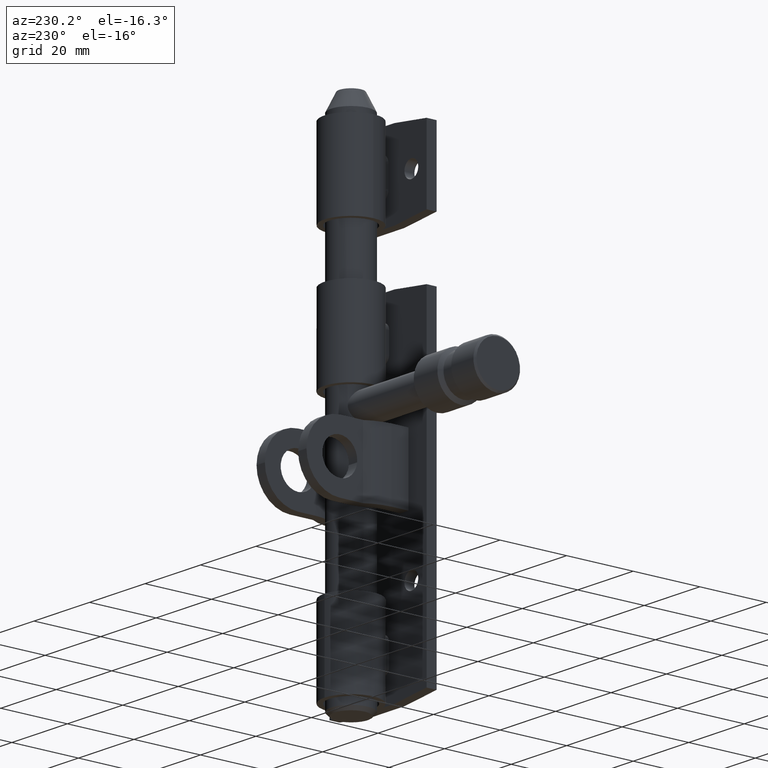
[diagram: clean part render]
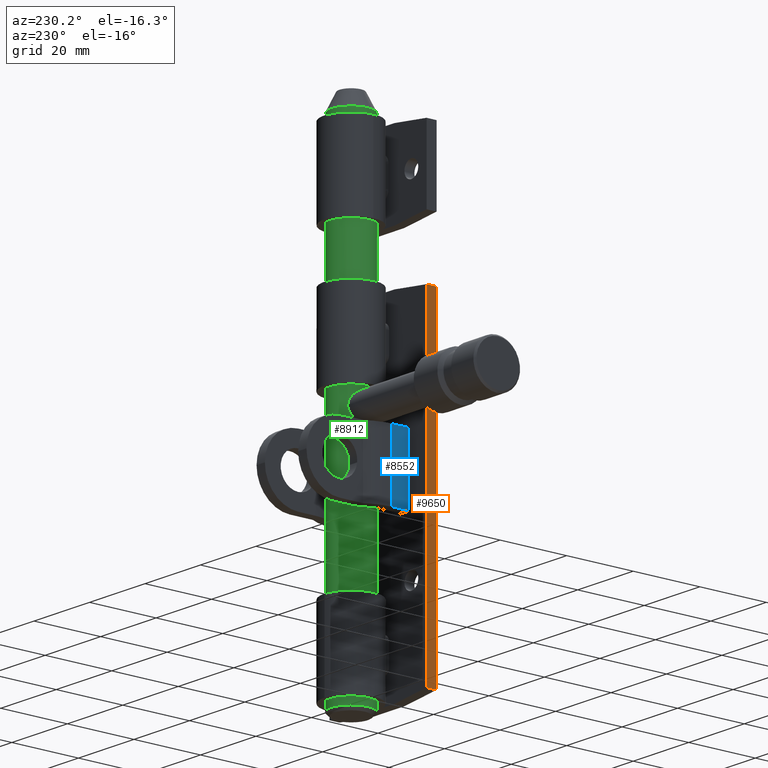
[diagram: same view with three faces highlighted in distinct colors, each labeled with its STEP entity id]
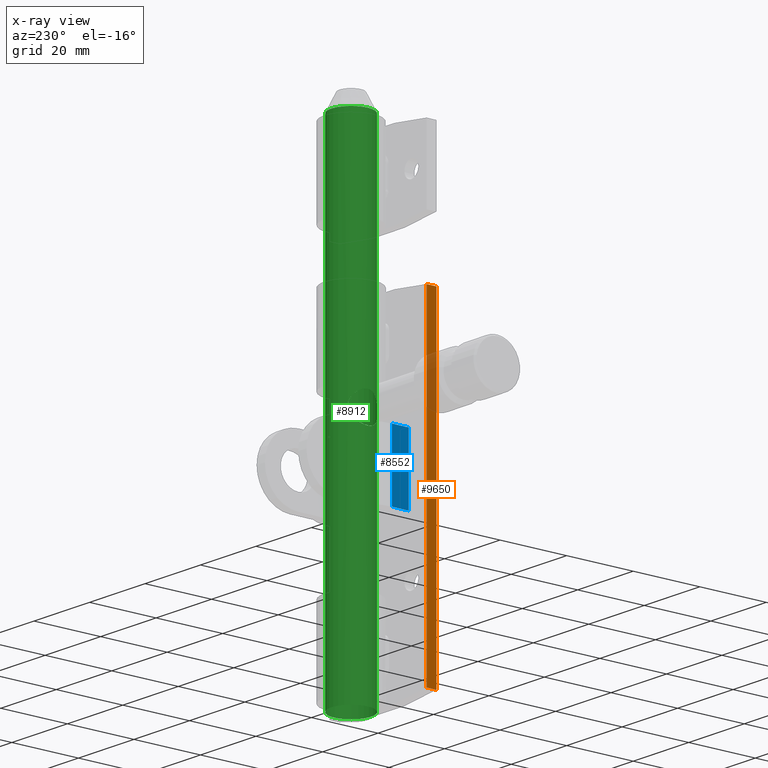
[diagram: x-ray of the same camera — body ghosted, the three highlighted faces saturated]
A machine part, auxiliary view with three faces highlighted in distinct colors.
The next image is the same camera in x-ray (body ghosted, the three faces saturated) — at least one of them is partly hidden behind the body in this view.
Their STEP definitions:

[orange] entity #9650 — the highlighted planar face has unit normal (-1, 0, 0).
#279 = CARTESIAN_POINT ( 'NONE',  ( -17.50000000000002132, 0.000000000000000000, -48.50000000000000000 ) ) ;
#425 = VECTOR ( 'NONE', #5684, 1000.000000000000000 ) ;
#1229 = EDGE_LOOP ( 'NONE', ( #2796, #5335, #4803, #6388 ) ) ;
#1445 = VECTOR ( 'NONE', #4489, 1000.000000000000000 ) ;
#1672 = CARTESIAN_POINT ( 'NONE',  ( -17.50000000000002132, -3.000000000000000000, -48.50000000000000000 ) ) ;
#1852 = DIRECTION ( 'NONE',  ( -1.000000000000000000, 0.000000000000000000, 0.000000000000000000 ) ) ;
#1913 = DIRECTION ( 'NONE',  ( 0.000000000000000000, 0.000000000000000000, 1.000000000000000000 ) ) ;
#2041 = EDGE_CURVE ( 'NONE', #8807, #13610, #7839, .T. ) ;
#2796 = ORIENTED_EDGE ( 'NONE', *, *, #8507, .F. ) ;
#3322 = VECTOR ( 'NONE', #11755, 1000.000000000000000 ) ;
#3829 = LINE ( 'NONE', #4001, #10210 ) ;
#4001 = CARTESIAN_POINT ( 'NONE',  ( -17.50000000000002132, -3.000000000000000000, -48.50000000000000000 ) ) ;
#4489 = DIRECTION ( 'NONE',  ( 0.000000000000000000, 0.000000000000000000, 1.000000000000000000 ) ) ;
#4663 = CARTESIAN_POINT ( 'NONE',  ( -17.50000000000002132, -3.000000000000000000, 48.50000000000000000 ) ) ;
#4803 = ORIENTED_EDGE ( 'NONE', *, *, #2041, .T. ) ;
#5041 = LINE ( 'NONE', #15260, #1445 ) ;
#5178 = DIRECTION ( 'NONE',  ( 0.000000000000000000, 1.000000000000000000, 0.000000000000000000 ) ) ;
#5335 = ORIENTED_EDGE ( 'NONE', *, *, #14419, .F. ) ;
#5492 = PLANE ( 'NONE',  #13529 ) ;
#5684 = DIRECTION ( 'NONE',  ( 0.000000000000000000, 1.000000000000000000, 0.000000000000000000 ) ) ;
#6388 = ORIENTED_EDGE ( 'NONE', *, *, #9695, .T. ) ;
#7839 = LINE ( 'NONE', #15402, #3322 ) ;
#8507 = EDGE_CURVE ( 'NONE', #14134, #14127, #5041, .T. ) ;
#8807 = VERTEX_POINT ( 'NONE', #1672 ) ;
#9447 = LINE ( 'NONE', #11602, #425 ) ;
#9632 = FACE_OUTER_BOUND ( 'NONE', #1229, .T. ) ;
#9650 = ADVANCED_FACE ( 'NONE', ( #9632 ), #5492, .T. ) ;
#9695 = EDGE_CURVE ( 'NONE', #13610, #14127, #9447, .T. ) ;
#10210 = VECTOR ( 'NONE', #5178, 1000.000000000000000 ) ;
#11095 = CARTESIAN_POINT ( 'NONE',  ( -17.50000000000002132, 0.000000000000000000, 48.50000000000000000 ) ) ;
#11602 = CARTESIAN_POINT ( 'NONE',  ( -17.50000000000002132, -3.000000000000000000, 48.50000000000000000 ) ) ;
#11755 = DIRECTION ( 'NONE',  ( 0.000000000000000000, 0.000000000000000000, 1.000000000000000000 ) ) ;
#13529 = AXIS2_PLACEMENT_3D ( 'NONE', #13956, #1852, #1913 ) ;
#13610 = VERTEX_POINT ( 'NONE', #4663 ) ;
#13956 = CARTESIAN_POINT ( 'NONE',  ( -17.50000000000002132, -3.000000000000000000, -48.50000000000000000 ) ) ;
#14127 = VERTEX_POINT ( 'NONE', #11095 ) ;
#14134 = VERTEX_POINT ( 'NONE', #279 ) ;
#14419 = EDGE_CURVE ( 'NONE', #8807, #14134, #3829, .T. ) ;
#15260 = CARTESIAN_POINT ( 'NONE',  ( -17.50000000000002132, 0.000000000000000000, -48.50000000000000000 ) ) ;
#15402 = CARTESIAN_POINT ( 'NONE',  ( -17.50000000000002132, -3.000000000000000000, -48.50000000000000000 ) ) ;

[blue] entity #8552 — the highlighted planar face has unit normal (1, 0, 0).
#622 = VERTEX_POINT ( 'NONE', #7778 ) ;
#823 = PLANE ( 'NONE',  #6864 ) ;
#1046 = ORIENTED_EDGE ( 'NONE', *, *, #5807, .F. ) ;
#1968 = DIRECTION ( 'NONE',  ( 0.000000000000000000, 1.000000000000000000, 0.000000000000000000 ) ) ;
#2220 = FACE_OUTER_BOUND ( 'NONE', #9530, .T. ) ;
#2780 = VERTEX_POINT ( 'NONE', #15377 ) ;
#3079 = DIRECTION ( 'NONE',  ( -0.000000000000000000, -1.387778780781445676E-16, 1.000000000000000000 ) ) ;
#3095 = ORIENTED_EDGE ( 'NONE', *, *, #10683, .T. ) ;
#3278 = CARTESIAN_POINT ( 'NONE',  ( -11.00000000000000000, 6.245004513516503568E-16, -4.499999999999999112 ) ) ;
#3560 = VECTOR ( 'NONE', #1968, 1000.000000000000000 ) ;
#4007 = CARTESIAN_POINT ( 'NONE',  ( -11.00000000000000000, -2.151057110211241192E-15, 15.50000000000000178 ) ) ;
#5807 = EDGE_CURVE ( 'NONE', #13171, #2780, #7329, .T. ) ;
#6670 = DIRECTION ( 'NONE',  ( -0.000000000000000000, -1.387778780781445676E-16, 1.000000000000000000 ) ) ;
#6772 = ORIENTED_EDGE ( 'NONE', *, *, #8416, .F. ) ;
#6864 = AXIS2_PLACEMENT_3D ( 'NONE', #3278, #11816, #8164 ) ;
#7329 = LINE ( 'NONE', #15170, #3560 ) ;
#7778 = CARTESIAN_POINT ( 'NONE',  ( -11.00000000000000000, 0.000000000000000000, 15.50000000000000000 ) ) ;
#8164 = DIRECTION ( 'NONE',  ( 0.000000000000000000, 0.000000000000000000, -1.000000000000000000 ) ) ;
#8416 = EDGE_CURVE ( 'NONE', #2780, #11432, #8837, .T. ) ;
#8513 = VECTOR ( 'NONE', #11223, 1000.000000000000000 ) ;
#8552 = ADVANCED_FACE ( 'NONE', ( #2220 ), #823, .F. ) ;
#8837 = LINE ( 'NONE', #8974, #9374 ) ;
#8974 = CARTESIAN_POINT ( 'NONE',  ( -11.00000000000000000, 5.000000000000000888, -4.499999999999999112 ) ) ;
#9374 = VECTOR ( 'NONE', #3079, 1000.000000000000000 ) ;
#9530 = EDGE_LOOP ( 'NONE', ( #13101, #6772, #1046, #3095 ) ) ;
#10683 = EDGE_CURVE ( 'NONE', #13171, #622, #12002, .T. ) ;
#11223 = DIRECTION ( 'NONE',  ( 0.000000000000000000, 1.000000000000000000, 0.000000000000000000 ) ) ;
#11432 = VERTEX_POINT ( 'NONE', #12971 ) ;
#11816 = DIRECTION ( 'NONE',  ( 1.000000000000000000, -0.000000000000000000, 0.000000000000000000 ) ) ;
#12002 = LINE ( 'NONE', #13782, #15607 ) ;
#12750 = CARTESIAN_POINT ( 'NONE',  ( -11.00000000000000000, 0.000000000000000000, -4.499999999999997335 ) ) ;
#12971 = CARTESIAN_POINT ( 'NONE',  ( -11.00000000000000000, 4.999999999999998224, 15.50000000000000178 ) ) ;
#13046 = LINE ( 'NONE', #4007, #8513 ) ;
#13101 = ORIENTED_EDGE ( 'NONE', *, *, #14747, .T. ) ;
#13171 = VERTEX_POINT ( 'NONE', #12750 ) ;
#13782 = CARTESIAN_POINT ( 'NONE',  ( -11.00000000000000000, 6.245004513516503568E-16, -4.499999999999999112 ) ) ;
#14747 = EDGE_CURVE ( 'NONE', #622, #11432, #13046, .T. ) ;
#15170 = CARTESIAN_POINT ( 'NONE',  ( -11.00000000000000000, 6.245004513516503568E-16, -4.499999999999999112 ) ) ;
#15377 = CARTESIAN_POINT ( 'NONE',  ( -11.00000000000000000, 5.000000000000000888, -4.499999999999999112 ) ) ;
#15607 = VECTOR ( 'NONE', #6670, 1000.000000000000000 ) ;

[green] entity #8912 — the highlighted cylindrical surface (bore or boss wall) has radius 6 mm, axis along (-0, 0, 1).
#27 = EDGE_LOOP ( 'NONE', ( #7498 ) ) ;
#79 = CARTESIAN_POINT ( 'NONE',  ( -4.078855240779868829, 4.400334097561947821, 2.299595525962476295 ) ) ;
#124 = EDGE_CURVE ( 'NONE', #4371, #4371, #14390, .T. ) ;
#856 = CARTESIAN_POINT ( 'NONE',  ( -5.002769405489416954, -3.320279772710570843, 4.900374044187418399 ) ) ;
#900 = CARTESIAN_POINT ( 'NONE',  ( -4.087224738381541655, -4.392616751692844268, 1.704532826553341485 ) ) ;
#1042 = CARTESIAN_POINT ( 'NONE',  ( -6.000000000000001776, -0.3041371738367418809, 6.400000000000003020 ) ) ;
#1088 = CARTESIAN_POINT ( 'NONE',  ( -5.910273364848801947, 1.044169355644736452, 6.276887466636305923 ) ) ;
#1184 = CARTESIAN_POINT ( 'NONE',  ( -5.353643259871865290, 2.720964154158716397, 5.469244985893701561 ) ) ;
#1226 = CARTESIAN_POINT ( 'NONE',  ( -5.891354502271765270, 1.174621039668888978, -2.250853426565163407 ) ) ;
#1275 = CARTESIAN_POINT ( 'NONE',  ( -6.000000000000001776, 0.3041371738367416033, 6.400000000000004796 ) ) ;
#2091 = CARTESIAN_POINT ( 'NONE',  ( -4.643590535970413491, -3.804551932649649970, 4.227393758163976223 ) ) ;
#2141 = CARTESIAN_POINT ( 'NONE',  ( 0.000000000000000000, 0.000000000000000000, -70.00000000000007105 ) ) ;
#2148 = CARTESIAN_POINT ( 'NONE',  ( -5.975386480595841654, -0.6176716086660005711, -2.366581132358360318 ) ) ;
#2242 = CARTESIAN_POINT ( 'NONE',  ( -5.889679250371120389, -1.182381027996281642, 6.248532858740497353 ) ) ;
#2338 = CARTESIAN_POINT ( 'NONE',  ( -5.242624912893316669, 2.926942380360094464, -1.296897432624570801 ) ) ;
#2440 = CARTESIAN_POINT ( 'NONE',  ( -4.114495591172188327, 4.367886721891684587, 1.392477840701724645 ) ) ;
#3148 = FACE_OUTER_BOUND ( 'NONE', #27, .T. ) ;
#3237 = VERTEX_POINT ( 'NONE', #9221 ) ;
#3251 = CIRCLE ( 'NONE', #15580, 6.000000000000000888 ) ;
#3359 = DIRECTION ( 'NONE',  ( -0.000000000000000000, -0.000000000000000000, 1.000000000000000000 ) ) ;
#3418 = CARTESIAN_POINT ( 'NONE',  ( -4.530024380792110783, -3.937196112576741847, 3.984644827847011239 ) ) ;
#3565 = CARTESIAN_POINT ( 'NONE',  ( -4.243187035322304013, 4.242524200464704798, 3.175530429029363333 ) ) ;
#3735 = CARTESIAN_POINT ( 'NONE',  ( -4.331067453322243743, 4.152777633197650253, 0.5387069342079011669 ) ) ;
#4371 = VERTEX_POINT ( 'NONE', #6692 ) ;
#4426 = ORIENTED_EDGE ( 'NONE', *, *, #124, .T. ) ;
#4472 = CARTESIAN_POINT ( 'NONE',  ( -4.079495678176971118, -4.399740350948635914, 2.303571339954730846 ) ) ;
#4669 = CARTESIAN_POINT ( 'NONE',  ( -5.567629115732094292, -2.251087040695141095, 5.791141381768930785 ) ) ;
#4720 = CARTESIAN_POINT ( 'NONE',  ( -5.976352457819925412, 0.6080253793589380784, 6.367897585819565442 ) ) ;
#4818 = CARTESIAN_POINT ( 'NONE',  ( -5.570383262408286740, 2.244155826469157233, -1.795154438074216818 ) ) ;
#4874 = CARTESIAN_POINT ( 'NONE',  ( -5.236763218800704500, 2.937315865003098825, 5.287569192124333739 ) ) ;
#5510 = EDGE_CURVE ( 'NONE', #3237, #3237, #5643, .T. ) ;
#5643 = CIRCLE ( 'NONE', #13014, 6.000000000000000888 ) ;
#5673 = CARTESIAN_POINT ( 'NONE',  ( -4.997505430861675535, -3.328269280509564165, -0.8913641074710818568 ) ) ;
#5861 = CARTESIAN_POINT ( 'NONE',  ( -6.000000000000001776, -1.355252715606880543E-16, 6.400000000000003908 ) ) ;
#5904 = CARTESIAN_POINT ( 'NONE',  ( -4.645867336781849488, 3.801862177294591305, -0.2322302297704040008 ) ) ;
#5954 = CARTESIAN_POINT ( 'NONE',  ( -4.112823127532085898, 4.369447867207782998, 2.596585480556590664 ) ) ;
#6001 = CARTESIAN_POINT ( 'NONE',  ( -4.530206988931242407, 3.936972720979847296, 0.01502735101737803954 ) ) ;
#6062 = CARTESIAN_POINT ( 'NONE',  ( -4.327730597344935148, 4.156247789179611019, 3.451374416214587182 ) ) ;
#6691 = DIRECTION ( 'NONE',  ( 0.000000000000000000, 0.000000000000000000, -1.000000000000000000 ) ) ;
#6692 = CARTESIAN_POINT ( 'NONE',  ( -6.000000000000000888, 0.000000000000000000, 6.400000000000002132 ) ) ;
#6875 = CARTESIAN_POINT ( 'NONE',  ( -5.576417289710988712, -2.284373710648263778, -1.805743585131631024 ) ) ;
#6929 = CARTESIAN_POINT ( 'NONE',  ( -5.977030140924054713, -0.6012131586243438797, 6.368821246636235500 ) ) ;
#6983 = CARTESIAN_POINT ( 'NONE',  ( -5.240267209439633866, -2.931136139322702672, 5.293154763752143666 ) ) ;
#7182 = CARTESIAN_POINT ( 'NONE',  ( -4.207809282064150835, 4.277407876510966211, 0.9580493028501859687 ) ) ;
#7287 = CARTESIAN_POINT ( 'NONE',  ( -5.956654013580092943, 0.7349973313342385017, -2.340754690508970448 ) ) ;
#7345 = CARTESIAN_POINT ( 'NONE',  ( -4.883561649889972323, 3.491284138801018955, -0.6922003781294623348 ) ) ;
#7498 = ORIENTED_EDGE ( 'NONE', *, *, #15293, .T. ) ;
#8095 = CARTESIAN_POINT ( 'NONE',  ( -5.886153779110470552, -1.199981457066384705, -2.243653320467741796 ) ) ;
#8147 = CARTESIAN_POINT ( 'NONE',  ( -5.824268757301169330, -1.468000079639496303, 6.157963497272532116 ) ) ;
#8200 = CARTESIAN_POINT ( 'NONE',  ( -4.525760606494262817, -3.942088173435307485, 0.02492963340932019545 ) ) ;
#8246 = CARTESIAN_POINT ( 'NONE',  ( -4.879399377096571122, -3.497000170542142516, 4.684564800738518997 ) ) ;
#8304 = CARTESIAN_POINT ( 'NONE',  ( -4.378315942083919055, 4.103167301411072998, 0.4050123033803401662 ) ) ;
#8392 = CARTESIAN_POINT ( 'NONE',  ( -4.878766801593249269, 3.497925612594118494, 4.683491151548803799 ) ) ;
#8402 = FACE_OUTER_BOUND ( 'NONE', #9618, .T. ) ;
#8439 = CARTESIAN_POINT ( 'NONE',  ( -4.374731103766592355, 4.106983271730283214, 3.585141478486622901 ) ) ;
#8496 = CARTESIAN_POINT ( 'NONE',  ( -4.526119125816948419, 3.941646985341905385, 3.975692143859866245 ) ) ;
#8912 = ADVANCED_FACE ( 'NONE', ( #3148, #8402, #10470 ), #12771, .T. ) ;
#9165 = EDGE_LOOP ( 'NONE', ( #4426 ) ) ;
#9195 = CARTESIAN_POINT ( 'NONE',  ( 0.000000000000000000, 0.000000000000000000, 75.00000000000000000 ) ) ;
#9221 = CARTESIAN_POINT ( 'NONE',  ( 6.000000000000000888, 0.000000000000000000, 74.00000000000001421 ) ) ;
#9248 = CARTESIAN_POINT ( 'NONE',  ( -4.238277705576126486, -4.247870651384427099, 3.184084353045867566 ) ) ;
#9383 = AXIS2_PLACEMENT_3D ( 'NONE', #9195, #12797, #11587 ) ;
#9450 = CARTESIAN_POINT ( 'NONE',  ( -4.143837898919898066, -4.339405875172722915, 1.257431235146069692 ) ) ;
#9494 = CARTESIAN_POINT ( 'NONE',  ( -5.565375350121374076, 2.256488265967601325, 5.787818291037173601 ) ) ;
#9618 = EDGE_LOOP ( 'NONE', ( #15115 ) ) ;
#10470 = FACE_BOUND ( 'NONE', #9165, .T. ) ;
#10496 = CARTESIAN_POINT ( 'NONE',  ( -4.119458498310472727, -4.362401823535782874, 1.406844786039221473 ) ) ;
#10549 = CARTESIAN_POINT ( 'NONE',  ( -6.000324472206058246, 0.1361782293674055899, -2.400442463101662316 ) ) ;
#10640 = CARTESIAN_POINT ( 'NONE',  ( -4.640835405587213636, -3.807882432794687855, -0.2216511685423181444 ) ) ;
#10690 = CARTESIAN_POINT ( 'NONE',  ( -5.660898571073208707, 2.008037731361780320, 5.925870874501854679 ) ) ;
#10744 = CARTESIAN_POINT ( 'NONE',  ( -4.079581788307300450, 4.399660518484933114, 1.690670125225645970 ) ) ;
#10800 = CARTESIAN_POINT ( 'NONE',  ( -5.005079945376840200, 3.316818116150509699, -0.9043488019813119561 ) ) ;
#10903 = CARTESIAN_POINT ( 'NONE',  ( -5.359216387382924829, 2.710019331444004642, -1.477819403808899423 ) ) ;
#11521 = CARTESIAN_POINT ( 'NONE',  ( 0.000000000000000000, 0.000000000000000000, 74.00000000000001421 ) ) ;
#11587 = DIRECTION ( 'NONE',  ( -1.000000000000000000, 0.000000000000000000, 0.000000000000000000 ) ) ;
#11695 = CARTESIAN_POINT ( 'NONE',  ( -4.236164906140938768, -4.249970637076632585, 0.8230732970709780938 ) ) ;
#11798 = CARTESIAN_POINT ( 'NONE',  ( -4.114730262943810501, -4.367653585587019549, 2.608328021983265632 ) ) ;
#11846 = VERTEX_POINT ( 'NONE', #14180 ) ;
#11848 = CARTESIAN_POINT ( 'NONE',  ( -4.322810422085614057, -4.163637627020619014, 0.5491092973689283285 ) ) ;
#11947 = CARTESIAN_POINT ( 'NONE',  ( -6.000000000000001776, -1.355252715606880543E-16, 6.400000000000003908 ) ) ;
#11996 = CARTESIAN_POINT ( 'NONE',  ( -5.782433123208763348, 1.607160295756457025, 6.098561357013293716 ) ) ;
#12063 = CARTESIAN_POINT ( 'NONE',  ( -5.973319791441354276, 0.5847285720147156196, -2.363559546315996851 ) ) ;
#12120 = CARTESIAN_POINT ( 'NONE',  ( -4.641918440856379391, 3.806631356463065163, 4.223997767012106941 ) ) ;
#12771 = CYLINDRICAL_SURFACE ( 'NONE', #9383, 6.000000000000000888 ) ;
#12777 = DIRECTION ( 'NONE',  ( 1.000000000000000000, 0.000000000000000000, 0.000000000000000000 ) ) ;
#12797 = DIRECTION ( 'NONE',  ( -0.000000000000000000, -0.000000000000000000, -1.000000000000000000 ) ) ;
#12910 = CARTESIAN_POINT ( 'NONE',  ( -4.079078214016901960, -4.400127379967562646, 1.853894837149207442 ) ) ;
#12953 = CARTESIAN_POINT ( 'NONE',  ( -5.999304709954428105, -0.3132030088502393284, -2.399051875135671530 ) ) ;
#13014 = AXIS2_PLACEMENT_3D ( 'NONE', #11521, #6691, #12777 ) ;
#13040 = CARTESIAN_POINT ( 'NONE',  ( -4.876182250899637083, -3.501452347205309401, -0.6787187229946824996 ) ) ;
#13248 = CARTESIAN_POINT ( 'NONE',  ( -5.995062273583111612, 0.2858061749085659131, -2.393276026789117772 ) ) ;
#13348 = CARTESIAN_POINT ( 'NONE',  ( -5.819370089303802729, 1.468232874592090953, 6.150425299940853741 ) ) ;
#14180 = CARTESIAN_POINT ( 'NONE',  ( 6.000000000000000888, 0.000000000000000000, -70.00000000000007105 ) ) ;
#14200 = CARTESIAN_POINT ( 'NONE',  ( -5.663755643958683805, -1.999750683615878044, 5.929972249501289205 ) ) ;
#14285 = CARTESIAN_POINT ( 'NONE',  ( -5.355032329999035667, -2.718366343927626438, 5.471401771842027806 ) ) ;
#14378 = CARTESIAN_POINT ( 'NONE',  ( -5.827696571553897975, 1.454860095651666407, -2.162768009803049285 ) ) ;
#14390 = B_SPLINE_CURVE_WITH_KNOTS ( 'NONE', 3,
 ( #5861, #1042, #6929, #2242, #8147, #14200, #4669, #14285, #6983, #856, #8246, #2091, #3418, #15398, #9248, #11798, #4472, #12910, #900, #10496, #9450, #11695, #11848, #8200, #10640, #13040, #5673, #15448, #6875, #15300, #8095, #2148, #12953, #10549, #13248, #12063, #7287, #1226, #14378, #14546, #4818, #10903, #2338, #10800, #7345, #5904, #6001, #8304, #3735, #14490, #7182, #2440, #10744, #79, #5954, #15601, #3565, #6062, #8439, #8496, #12120, #8392, #14427, #4874, #1184, #9494, #10690, #11996, #13348, #15548, #1088, #4720, #1275, #11947 ),
 .UNSPECIFIED., .T., .F.,
 ( 4, 2, 2, 2, 2, 2, 2, 2, 2, 2, 2, 2, 2, 2, 2, 2, 2, 2, 2, 2, 2, 2, 2, 2, 2, 2, 2, 2, 2, 2, 2, 2, 2, 2, 2, 2, 4 ),
 ( 0.000000000000000000, 0.0008976116784972111963, 0.001795223356994422393, 0.002692835035491633697, 0.003590446713988844785, 0.004488058392486056307, 0.005385670070983267395, 0.006283281749480479350, 0.007180893427977691305, 0.007629699267226296849, 0.008078505106474903261, 0.008976116784972112614, 0.009873728463469323702, 0.01077134014196653305, 0.01256656349896095697, 0.01346417517745816632, 0.01436178685595537741, 0.01481059269520398555, 0.01525939853445259196, 0.01615701021294980305, 0.01705462189144701587, 0.01795223356994422523, 0.01884984524844143458, 0.01974745692693864740, 0.02019626276618725208, 0.02064506860543585676, 0.02154268028393306958, 0.02244029196243028240, 0.02288909780167888708, 0.02333790364092749176, 0.02423551531942470805, 0.02513312699792192087, 0.02603073867641913369, 0.02692835035491634998, 0.02737715619416495466, 0.02782596203341355934, 0.02872357371191077216 ),
 .UNSPECIFIED. ) ;
#14427 = CARTESIAN_POINT ( 'NONE',  ( -4.999891804583937116, 3.324544396310150418, 4.895399841259706619 ) ) ;
#14490 = CARTESIAN_POINT ( 'NONE',  ( -4.245899319418191098, 4.239816779694386639, 0.8147181054531026367 ) ) ;
#14546 = CARTESIAN_POINT ( 'NONE',  ( -5.666563511388032381, 1.992165454832100169, -1.934022394691320423 ) ) ;
#15115 = ORIENTED_EDGE ( 'NONE', *, *, #5510, .T. ) ;
#15293 = EDGE_CURVE ( 'NONE', #11846, #11846, #3251, .T. ) ;
#15300 = CARTESIAN_POINT ( 'NONE',  ( -5.821551463900495271, -1.479269013019650414, -2.154187653264802993 ) ) ;
#15398 = CARTESIAN_POINT ( 'NONE',  ( -4.327010075787802279, -4.159280938274210193, 3.463116672756516579 ) ) ;
#15437 = DIRECTION ( 'NONE',  ( 1.000000000000000000, 0.000000000000000000, 0.000000000000000000 ) ) ;
#15448 = CARTESIAN_POINT ( 'NONE',  ( -5.356217178140140867, -2.742386785429379081, -1.485507988991137340 ) ) ;
#15548 = CARTESIAN_POINT ( 'NONE',  ( -5.883159562550352106, 1.187101331769567336, 6.239401888537229546 ) ) ;
#15580 = AXIS2_PLACEMENT_3D ( 'NONE', #2141, #3359, #15437 ) ;
#15601 = CARTESIAN_POINT ( 'NONE',  ( -4.205434954873225273, 4.279738780110625918, 3.032391979328398879 ) ) ;